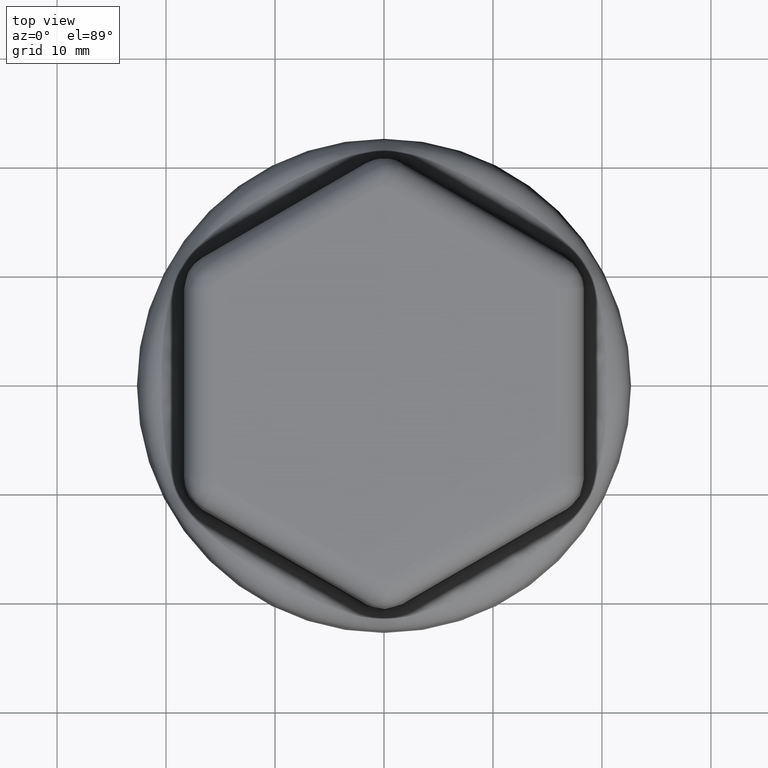
[diagram: clean part render]
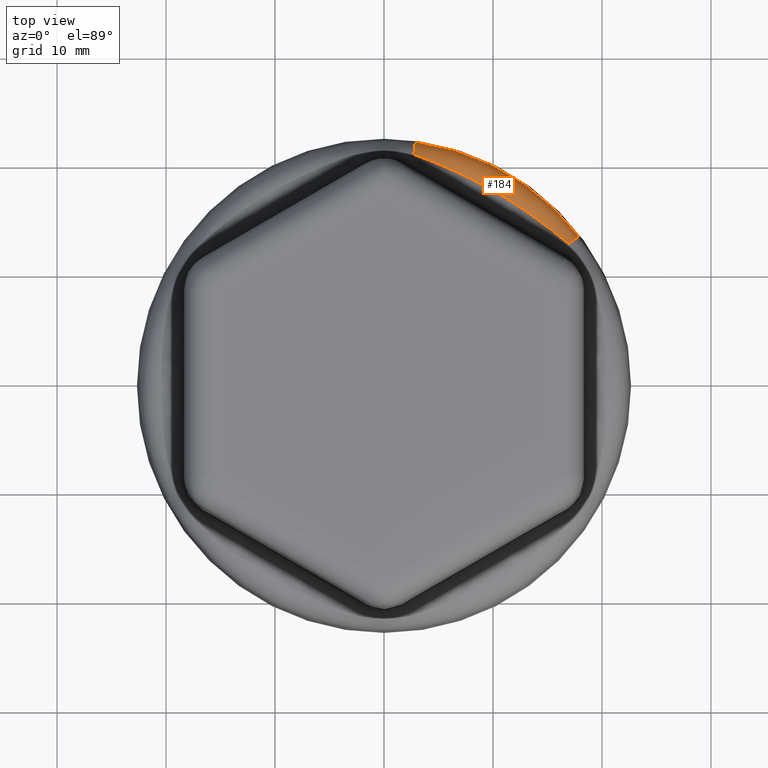
[diagram: same view with one face highlighted and labeled with its STEP entity id]
A machine part, top view. The second image highlights one B-rep face of the part: STEP entity #184.
In plain terms, the highlighted toroidal blend (fillet) surface has major radius 19.9966 mm and minor (blend) radius 2.5 mm.
Its self-contained STEP definition (entity closure, byte-faithful):
#184 = ADVANCED_FACE( '', ( #427 ), #428, .T. );
#427 = FACE_OUTER_BOUND( '', #4898, .T. );
#428 = TOROIDAL_SURFACE( '', #4899, 19.9965691350052, 2.50000000000000 );
#4898 = EDGE_LOOP( '', ( #6392, #6393, #6394, #6395, #6396, #6397 ) );
#4899 = AXIS2_PLACEMENT_3D( '', #6398, #6399, #6400 );
#6392 = ORIENTED_EDGE( '', *, *, #6624, .T. );
#6393 = ORIENTED_EDGE( '', *, *, #6805, .T. );
#6394 = ORIENTED_EDGE( '', *, *, #6804, .T. );
#6395 = ORIENTED_EDGE( '', *, *, #6672, .F. );
#6396 = ORIENTED_EDGE( '', *, *, #6806, .T. );
#6397 = ORIENTED_EDGE( '', *, *, #6803, .T. );
#6398 = CARTESIAN_POINT( '', ( 0.000000000000000, 0.000000000000000, 3.30000000000000 ) );
#6399 = DIRECTION( '', ( 0.000000000000000, 0.000000000000000, 1.00000000000000 ) );
#6400 = DIRECTION( '', ( 1.00000000000000, 0.000000000000000, 0.000000000000000 ) );
#6624 = EDGE_CURVE( '', #6999, #7003, #7005, .T. );
#6672 = EDGE_CURVE( '', #7089, #7090, #7091, .T. );
#6803 = EDGE_CURVE( '', #7287, #6999, #7293, .T. );
#6804 = EDGE_CURVE( '', #7290, #7090, #7294, .F. );
#6805 = EDGE_CURVE( '', #7003, #7290, #7295, .T. );
#6806 = EDGE_CURVE( '', #7089, #7287, #7296, .T. );
#6999 = VERTEX_POINT( '', #7873 );
#7003 = VERTEX_POINT( '', #7921 );
#7005 = B_SPLINE_CURVE_WITH_KNOTS( '', 3, ( #7923, #7924, #7925, #7926, #7927, #7928, #7929, #7930, #7931, #7932, #7933, #7934, #7935, #7936, #7937, #7938, #7939, #7940, #7941, #7942, #7943, #7944, #7945, #7946, #7947, #7948, #7949, #7950, #7951, #7952, #7953, #7954, #7955, #7956, #7957, #7958, #7959, #7960, #7961, #7962, #7963, #7964, #7965, #7966, #7967 ), .UNSPECIFIED., .F., .F., ( 4, 2, 2, 1, 1, 1, 2, 2, 1, 2, 2, 2, 1, 2, 2, 1, 2, 2, 2, 2, 2, 1, 1, 1, 2, 2, 4 ), ( 5.86842223840123E-005, 0.000572344112964673, 0.00108600400354533, 0.00159966389412600, 0.00211332378470666, 0.00262698367528732, 0.00314064356586798, 0.00339747351115831, 0.00365430345644864, 0.00416796334702929, 0.00519528312819061, 0.00622260290935193, 0.00724992269051325, 0.00827724247167456, 0.00853407241696490, 0.00879090236225524, 0.00930456225283591, 0.0103318820339973, 0.0113592018151586, 0.0123865215963200, 0.0134138413774814, 0.0139275012680621, 0.0144411611586428, 0.0149548210492234, 0.0154684809398041, 0.0159821408303848, 0.0164958007209655 ), .UNSPECIFIED. );
#7089 = VERTEX_POINT( '', #8430 );
#7090 = VERTEX_POINT( '', #8431 );
#7091 = CIRCLE( '', #8432, 22.4931429718916 );
#7287 = VERTEX_POINT( '', #9708 );
#7290 = VERTEX_POINT( '', #9716 );
#7293 = B_SPLINE_CURVE_WITH_KNOTS( '', 3, ( #9724, #9725, #9726, #9727 ), .UNSPECIFIED., .F., .F., ( 4, 4 ), ( 4.33680868994202E-019, 5.87313623157997E-005 ), .UNSPECIFIED. );
#7294 = CIRCLE( '', #9728, 2.50000000000000 );
#7295 = B_SPLINE_CURVE_WITH_KNOTS( '', 3, ( #9729, #9730, #9731, #9732 ), .UNSPECIFIED., .F., .F., ( 4, 4 ), ( 0.000000000000000, 5.87313703501064E-005 ), .UNSPECIFIED. );
#7296 = CIRCLE( '', #9733, 2.50000000000000 );
#7873 = CARTESIAN_POINT( '', ( 2.78968901395982, 21.1388153067125, 5.41966326159155 ) );
#7921 = CARTESIAN_POINT( '', ( 16.9119065484366, 12.9853492132152, 5.41966326267246 ) );
#7923 = CARTESIAN_POINT( '', ( 2.78968901395982, 21.1388153067125, 5.41966326159155 ) );
#7924 = CARTESIAN_POINT( '', ( 2.94934066782550, 21.0805262008961, 5.44273860122278 ) );
#7925 = CARTESIAN_POINT( '', ( 3.10890339329838, 21.0215408088144, 5.46370905328821 ) );
#7926 = CARTESIAN_POINT( '', ( 3.42776062465232, 20.9021104126852, 5.50215952665565 ) );
#7927 = CARTESIAN_POINT( '', ( 3.58705527462617, 20.8416653976278, 5.51963787470038 ) );
#7928 = CARTESIAN_POINT( '', ( 3.90530058207360, 20.7192517619503, 5.55167262846147 ) );
#7929 = CARTESIAN_POINT( '', ( 4.22320201964113, 20.5953145110303, 5.58078401459658 ) );
#7930 = CARTESIAN_POINT( '', ( 4.69882725046648, 20.4046558492054, 5.61707054927751 ) );
#7931 = CARTESIAN_POINT( '', ( 5.17305574049478, 20.2090729874779, 5.64712564057432 ) );
#7932 = CARTESIAN_POINT( '', ( 5.48817769304564, 20.0752945547548, 5.66364859016027 ) );
#7933 = CARTESIAN_POINT( '', ( 5.72409996925742, 19.9736521350681, 5.67492592018488 ) );
#7934 = CARTESIAN_POINT( '', ( 5.80265508996633, 19.9395600293180, 5.67849807329087 ) );
#7935 = CARTESIAN_POINT( '', ( 5.95954980428103, 19.8709653661157, 5.68529715201220 ) );
#7936 = CARTESIAN_POINT( '', ( 6.19458755612349, 19.7674496176742, 5.69497829054551 ) );
#7937 = CARTESIAN_POINT( '', ( 6.42869799974578, 19.6620387698926, 5.70323723379076 ) );
#7938 = CARTESIAN_POINT( '', ( 6.89564823304644, 19.4486328847915, 5.71815571713444 ) );
#7939 = CARTESIAN_POINT( '', ( 7.20525289289369, 19.3029146316496, 5.72598240023343 ) );
#7940 = CARTESIAN_POINT( '', ( 7.82092116653163, 19.0043280783898, 5.73860895960517 ) );
#7941 = CARTESIAN_POINT( '', ( 8.12698487678402, 18.8514598726073, 5.74340613123164 ) );
#7942 = CARTESIAN_POINT( '', ( 8.73546161985786, 18.5383842632384, 5.75077391899326 ) );
#7943 = CARTESIAN_POINT( '', ( 9.34028777570296, 18.2179695532272, 5.75591287041837 ) );
#7944 = CARTESIAN_POINT( '', ( 9.93766918550935, 17.8826242784384, 5.75751298923564 ) );
#7945 = CARTESIAN_POINT( '', ( 10.3086842784181, 17.6683275776186, 5.75749748399534 ) );
#7946 = CARTESIAN_POINT( '', ( 10.3827806653159, 17.6252267670726, 5.75744282321163 ) );
#7947 = CARTESIAN_POINT( '', ( 10.5306502006364, 17.5386064967894, 5.75722984862357 ) );
#7948 = CARTESIAN_POINT( '', ( 10.7519917402915, 17.4080357082433, 5.75675464973892 ) );
#7949 = CARTESIAN_POINT( '', ( 10.9719482206725, 17.2755487052895, 5.75580692906267 ) );
#7950 = CARTESIAN_POINT( '', ( 11.4100257172743, 17.0080386323411, 5.75324013532243 ) );
#7951 = CARTESIAN_POINT( '', ( 11.6996291518784, 16.8263150989411, 5.75064389571500 ) );
#7952 = CARTESIAN_POINT( '', ( 12.2740225328112, 16.4562511367624, 5.74322334793262 ) );
#7953 = CARTESIAN_POINT( '', ( 12.5588124827283, 16.2679106197699, 5.73840032516390 ) );
#7954 = CARTESIAN_POINT( '', ( 13.1236920565670, 15.8848297039403, 5.72573163004887 ) );
#7955 = CARTESIAN_POINT( '', ( 13.4037816962913, 15.6900891446394, 5.71788847591912 ) );
#7956 = CARTESIAN_POINT( '', ( 13.9594037631243, 15.2944958285995, 5.69799225431526 ) );
#7957 = CARTESIAN_POINT( '', ( 14.2349362424060, 15.0936428119368, 5.68594378170159 ) );
#7958 = CARTESIAN_POINT( '', ( 14.6449461679287, 14.7880525338799, 5.66345164482530 ) );
#7959 = CARTESIAN_POINT( '', ( 14.9171902928153, 14.5828900295338, 5.64697482518409 ) );
#7960 = CARTESIAN_POINT( '', ( 15.3223411418931, 14.2710000432212, 5.61699835557318 ) );
#7961 = CARTESIAN_POINT( '', ( 15.7243532966511, 13.9551422065224, 5.58078975760659 ) );
#7962 = CARTESIAN_POINT( '', ( 15.9903225963021, 13.7420569383259, 5.55172013622695 ) );
#7963 = CARTESIAN_POINT( '', ( 16.2553002115070, 13.5277883296418, 5.51971230309182 ) );
#7964 = CARTESIAN_POINT( '', ( 16.3872931993083, 13.4200623039508, 5.50224042015135 ) );
#7965 = CARTESIAN_POINT( '', ( 16.6503156046324, 13.2035088139831, 5.46377532186396 ) );
#7966 = CARTESIAN_POINT( '', ( 16.7813450577744, 13.0946812694473, 5.44278390395919 ) );
#7967 = CARTESIAN_POINT( '', ( 16.9119065484366, 12.9853492132152, 5.41966326267246 ) );
#8430 = CARTESIAN_POINT( '', ( 2.88345833945542, 22.3075581083763, 3.43083989060736 ) );
#8431 = CARTESIAN_POINT( '', ( 17.8771828485237, 13.6509272269106, 3.43083989060736 ) );
#8432 = AXIS2_PLACEMENT_3D( '', #10000, #10001, #10002 );
#9708 = CARTESIAN_POINT( '', ( 2.73494059800214, 21.1585669465273, 5.41179836526544 ) );
#9716 = CARTESIAN_POINT( '', ( 16.9563861843653, 12.9478115089749, 5.41179836526549 ) );
#9724 = CARTESIAN_POINT( '', ( 2.73494059800214, 21.1585669465273, 5.41179836526544 ) );
#9725 = CARTESIAN_POINT( '', ( 2.75321681335305, 21.1520522407354, 5.41440755550012 ) );
#9726 = CARTESIAN_POINT( '', ( 2.77146628550259, 21.1454684575837, 5.41702942953627 ) );
#9727 = CARTESIAN_POINT( '', ( 2.78968901395982, 21.1388153067125, 5.41966326159155 ) );
#9728 = AXIS2_PLACEMENT_3D( '', #10165, #10166, #10167 );
#9729 = CARTESIAN_POINT( '', ( 16.9119065484366, 12.9853492132152, 5.41966326267245 ) );
#9730 = CARTESIAN_POINT( '', ( 16.9267797123718, 12.9728944411780, 5.41702943026438 ) );
#9731 = CARTESIAN_POINT( '', ( 16.9416061739540, 12.9603818245775, 5.41440755585709 ) );
#9732 = CARTESIAN_POINT( '', ( 16.9563861843653, 12.9478115089749, 5.41179836526549 ) );
#9733 = AXIS2_PLACEMENT_3D( '', #10168, #10169, #10170 );
#10000 = CARTESIAN_POINT( '', ( 0.000000000000000, 0.000000000000000, 3.43083989060736 ) );
#10001 = DIRECTION( '', ( 0.000000000000000, 0.000000000000000, -1.00000000000000 ) );
#10002 = DIRECTION( '', ( -1.00000000000000, 0.000000000000000, 0.000000000000000 ) );
#10165 = CARTESIAN_POINT( '', ( 15.8929467178667, 12.1357744620643, 3.30000000000000 ) );
#10166 = DIRECTION( '', ( 0.606892831471768, -0.794783675667902, -1.45370516761596E-016 ) );
#10167 = DIRECTION( '', ( 0.794783675667902, 0.606892831471768, 0.000000000000000 ) );
#10168 = CARTESIAN_POINT( '', ( 2.56341561981271, 19.8315828296973, 3.30000000000000 ) );
#10169 = DIRECTION( '', ( 0.991749269377459, -0.128192771595268, 3.21844246940700E-016 ) );
#10170 = DIRECTION( '', ( 0.128192771595268, 0.991749269377459, 0.000000000000000 ) );